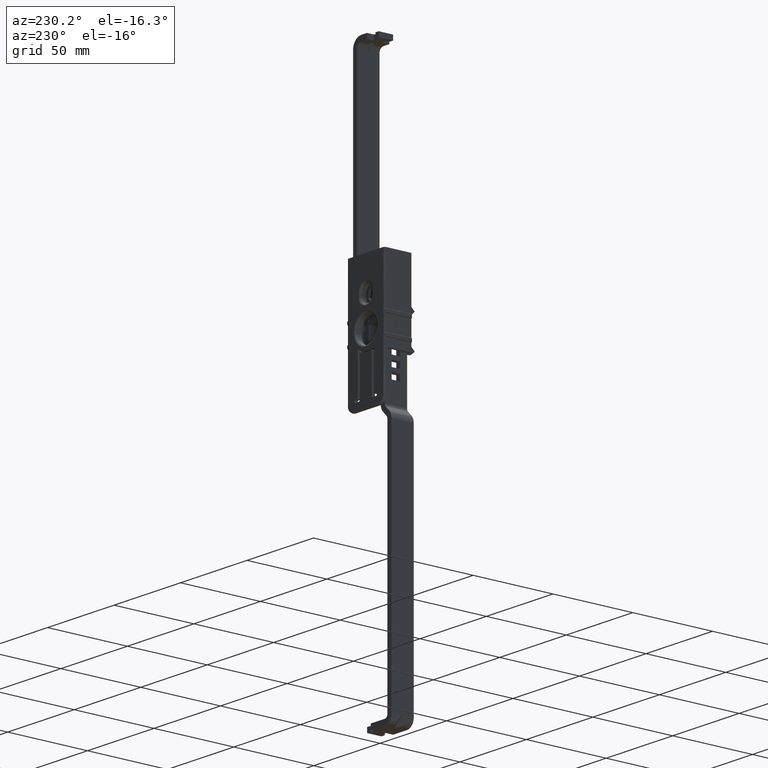
[diagram: clean part render]
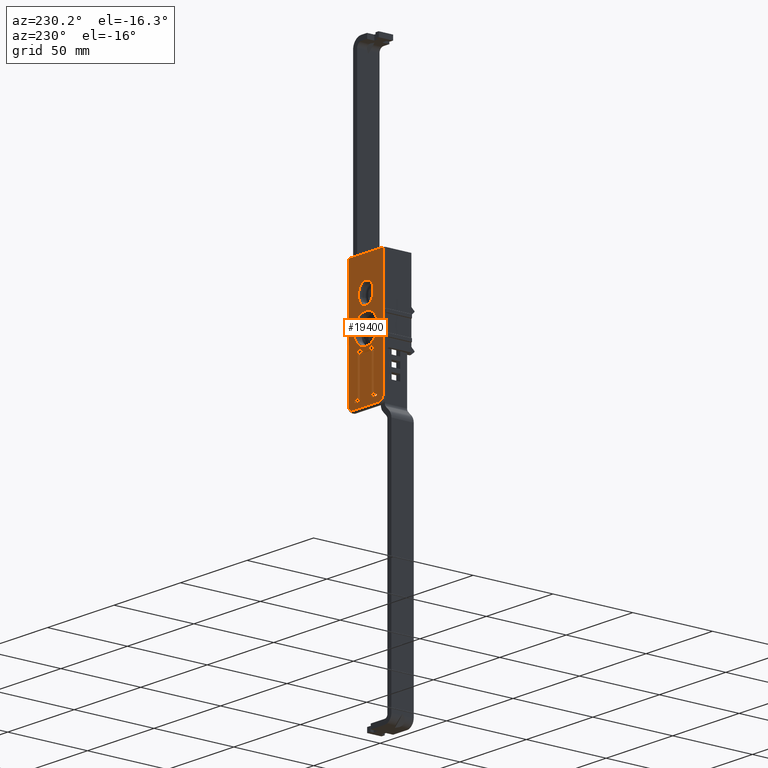
[diagram: same view with one face highlighted and labeled with its STEP entity id]
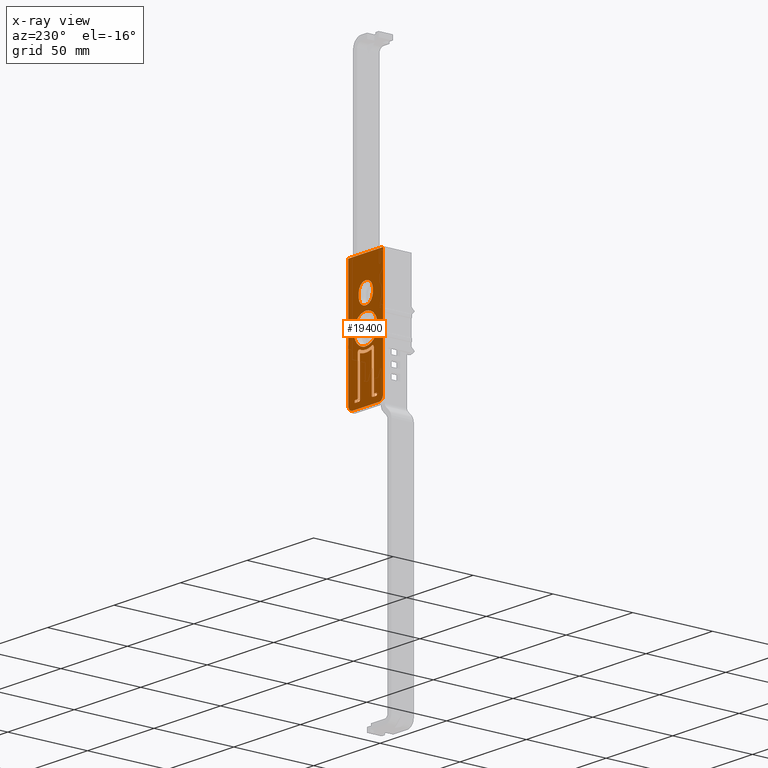
[diagram: x-ray of the same camera — body ghosted, the highlighted face saturated]
A machine part, auxiliary view. The second image highlights one B-rep face of the part: STEP entity #19400.
The next image is the same camera in x-ray: the body ghosted, the highlighted face saturated — about 0% of this face is hidden behind the body in this view.
In plain terms, the highlighted face is a freeform B-spline surface patch.
Its self-contained STEP definition (entity closure, byte-faithful):
#7867=CARTESIAN_POINT('',(8.899297249800293,9.000000427477161,-0.111837760280826));
#7868=VERTEX_POINT('',#7867);
#7882=CARTESIAN_POINT('',(0.0,9.000000427477152,-8.900000000000000));
#7883=VERTEX_POINT('',#7882);
#7884=CARTESIAN_POINT('',(8.899297249800293,9.000000427477161,-0.111837760280826));
#7885=CARTESIAN_POINT('',(8.788856148611307,9.000000427477156,-8.899999999726415));
#7886=CARTESIAN_POINT('',(0.0,9.000000427477152,-8.900000000000000));
#7894=(BOUNDED_CURVE()B_SPLINE_CURVE(2,(#7884,#7885,#7886),.UNSPECIFIED.,.F.,.U.)B_SPLINE_CURVE_WITH_KNOTS((3,3),(0.752215704194198,1.0),.UNSPECIFIED.)CURVE()GEOMETRIC_REPRESENTATION_ITEM()RATIONAL_B_SPLINE_CURVE((0.994854295377195,0.709702640120056,1.0))REPRESENTATION_ITEM(''));
#7895=EDGE_CURVE('',#7868,#7883,#7894,.T.);
#7897=CARTESIAN_POINT('',(-8.899297249800295,9.000000427477161,0.111837760280826));
#7898=VERTEX_POINT('',#7897);
#7899=CARTESIAN_POINT('',(0.0,9.000000427477152,-8.900000000000000));
#7900=CARTESIAN_POINT('',(-8.899999978501892,9.000000427477156,-8.900000000270170));
#7901=CARTESIAN_POINT('',(-8.899999956731916,9.000000427477161,-5.437533E-010));
#7902=CARTESIAN_POINT('',(-8.899999956595131,9.000000427477159,0.055921087515773));
#7903=CARTESIAN_POINT('',(-8.899297249800295,9.000000427477161,0.111837760280826));
#7911=(BOUNDED_CURVE()B_SPLINE_CURVE(2,(#7899,#7900,#7901,#7902,#7903),.UNSPECIFIED.,.F.,.U.)B_SPLINE_CURVE_WITH_KNOTS((3,2,3),(0.0,0.250000000000000,0.252215704194198),.UNSPECIFIED.)CURVE()GEOMETRIC_REPRESENTATION_ITEM()RATIONAL_B_SPLINE_CURVE((1.0,0.707106781186548,1.0,0.997404141066491,0.994854295377195))REPRESENTATION_ITEM(''));
#7912=EDGE_CURVE('',#7883,#7898,#7911,.T.);
#7955=CARTESIAN_POINT('',(0.0,9.000000427477179,8.900000000000000));
#7956=VERTEX_POINT('',#7955);
#7957=CARTESIAN_POINT('',(-8.899297249800295,9.000000427477161,0.111837760280826));
#7958=CARTESIAN_POINT('',(-8.788856148611311,9.000000427477172,8.899999999726417));
#7959=CARTESIAN_POINT('',(0.0,9.000000427477179,8.900000000000000));
#7967=(BOUNDED_CURVE()B_SPLINE_CURVE(2,(#7957,#7958,#7959),.UNSPECIFIED.,.F.,.U.)B_SPLINE_CURVE_WITH_KNOTS((3,3),(0.252215704194198,0.500000000000000),.UNSPECIFIED.)CURVE()GEOMETRIC_REPRESENTATION_ITEM()RATIONAL_B_SPLINE_CURVE((0.994854295377195,0.709702640120056,1.0))REPRESENTATION_ITEM(''));
#7968=EDGE_CURVE('',#7898,#7956,#7967,.T.);
#7970=CARTESIAN_POINT('',(0.0,9.000000427477179,8.900000000000000));
#7971=CARTESIAN_POINT('',(8.899999978501890,9.000000427477170,8.900000000270168));
#7972=CARTESIAN_POINT('',(8.899999956731914,9.000000427477161,5.437529E-010));
#7973=CARTESIAN_POINT('',(8.899999956595130,9.000000427477159,-0.055921087515773));
#7974=CARTESIAN_POINT('',(8.899297249800293,9.000000427477161,-0.111837760280826));
#7982=(BOUNDED_CURVE()B_SPLINE_CURVE(2,(#7970,#7971,#7972,#7973,#7974),.UNSPECIFIED.,.F.,.U.)B_SPLINE_CURVE_WITH_KNOTS((3,2,3),(0.500000000000000,0.750000000000000,0.752215704194198),.UNSPECIFIED.)CURVE()GEOMETRIC_REPRESENTATION_ITEM()RATIONAL_B_SPLINE_CURVE((1.0,0.707106781186548,1.0,0.997404141066491,0.994854295377195))REPRESENTATION_ITEM(''));
#7983=EDGE_CURVE('',#7956,#7868,#7982,.T.);
#8126=CARTESIAN_POINT('',(5.289275512781100,9.000000427477179,18.960003688880700));
#8127=VERTEX_POINT('',#8126);
#8157=CARTESIAN_POINT('',(5.289275512781100,9.000000427477179,17.039998021027401));
#8158=VERTEX_POINT('',#8157);
#8159=CARTESIAN_POINT('',(5.289275512781100,9.000000427477179,18.960003688880700));
#8160=CARTESIAN_POINT('',(5.289275512781100,9.000000427477179,17.039998021027401));
#8161=QUASI_UNIFORM_CURVE('',1,(#8159,#8160),.UNSPECIFIED.,.F.,.U.);
#8162=EDGE_CURVE('',#8127,#8158,#8161,.T.);
#8226=CARTESIAN_POINT('',(-5.289274016024190,9.000000427477179,17.040195466436700));
#8227=VERTEX_POINT('',#8226);
#8273=CARTESIAN_POINT('',(5.289275512781100,9.000000427477179,17.039998021027401));
#8274=CARTESIAN_POINT('',(5.295842224295991,9.000000427477179,16.300654058950851));
#8275=CARTESIAN_POINT('',(5.017701116741920,9.000000427477213,14.951425911646449));
#8276=CARTESIAN_POINT('',(3.970944924719992,9.000000427477113,13.368384744820711));
#8277=CARTESIAN_POINT('',(2.829903729874185,9.000000427477286,12.472518958754151));
#8278=CARTESIAN_POINT('',(1.600906940367979,9.000000427477001,11.906551195581971));
#8279=CARTESIAN_POINT('',(0.307670365402238,9.000000427477508,11.647859827935770));
#8280=CARTESIAN_POINT('',(-1.091498398410623,9.000000427476740,11.769175308379980));
#8281=CARTESIAN_POINT('',(-2.373281891802585,9.000000427477387,12.212509545622471));
#8282=CARTESIAN_POINT('',(-3.658701217304619,9.000000427477488,13.053405214971550));
#8283=CARTESIAN_POINT('',(-4.620780961020337,9.000000427476902,14.266047306150210));
#8284=CARTESIAN_POINT('',(-5.180674153244689,9.000000427477231,15.691514644731770));
#8285=CARTESIAN_POINT('',(-5.293061865930485,9.000000427477408,16.561917028224379));
#8286=CARTESIAN_POINT('',(-5.289274016024190,9.000000427477179,17.040195466436700));
#8287=B_SPLINE_CURVE_WITH_KNOTS('',3,(#8273,#8274,#8275,#8276,#8277,#8278,#8279,#8280,#8281,#8282,#8283,#8284,#8285,#8286),.UNSPECIFIED.,.F.,.U.,(4,1,1,1,1,1,1,1,1,1,1,4),(0.000001638717350,2.217647427210661,4.044016231080340,5.609298868505242,6.522478192252242,8.087997833760223,9.523065298616336,10.697204190989870,12.131974867951801,14.088803771588850,15.262958981909700,16.697839885468230),.UNSPECIFIED.);
#8288=EDGE_CURVE('',#8158,#8227,#8287,.T.);
#8316=CARTESIAN_POINT('',(-5.289274016024190,9.000000427477179,18.959806243471348));
#8317=VERTEX_POINT('',#8316);
#8347=CARTESIAN_POINT('',(-5.289274016024190,9.000000427477179,18.959806243471348));
#8348=CARTESIAN_POINT('',(-5.292995496096881,9.000000427477179,19.438075087753329));
#8349=CARTESIAN_POINT('',(-5.153018893826491,9.000000427477168,20.526353432826369));
#8350=CARTESIAN_POINT('',(-4.537618067330736,9.000000427477199,21.846276385235289));
#8351=CARTESIAN_POINT('',(-3.685100453129818,9.000000427477151,22.842242969685628));
#8352=CARTESIAN_POINT('',(-2.757484134551335,9.000000427477220,23.571130284900921));
#8353=CARTESIAN_POINT('',(-1.442198208590511,9.000000427477151,24.177221073295112));
#8354=CARTESIAN_POINT('',(0.090672707578646,9.000000427477229,24.367293025023930));
#8355=CARTESIAN_POINT('',(1.515166228610916,9.000000427477181,24.118515402979121));
#8356=CARTESIAN_POINT('',(2.599939425382499,9.000000427477172,23.650971170088571));
#8357=CARTESIAN_POINT('',(3.526827200929331,9.000000427477190,22.994120556376949));
#8358=CARTESIAN_POINT('',(4.267972706617378,9.000000427477179,22.189822818546499));
#8359=CARTESIAN_POINT('',(5.048262186566869,9.000000427477177,20.874300245530652));
#8360=CARTESIAN_POINT('',(5.296285822240345,9.000000427477183,19.742891286608451));
#8361=CARTESIAN_POINT('',(5.289275512781100,9.000000427477179,18.960003688880700));
#8362=B_SPLINE_CURVE_WITH_KNOTS('',3,(#8347,#8348,#8349,#8350,#8351,#8352,#8353,#8354,#8355,#8356,#8357,#8358,#8359,#8360,#8361),.UNSPECIFIED.,.F.,.U.,(4,1,1,1,1,1,1,1,1,1,1,1,4),(0.000001638724623,1.434941391471540,3.261334190723371,4.305017947438271,5.348667309405565,6.783444937736221,8.609843680213412,9.914396576258570,11.088542645487900,12.131974867953399,13.306047797923290,14.349738051738040,16.697839885468149),.UNSPECIFIED.);
#8363=EDGE_CURVE('',#8317,#8127,#8362,.T.);
#8401=CARTESIAN_POINT('',(-5.289274016024190,9.000000427477179,17.040195466436700));
#8402=CARTESIAN_POINT('',(-5.289274016024190,9.000000427477179,18.959806243471348));
#8403=QUASI_UNIFORM_CURVE('',1,(#8401,#8402),.UNSPECIFIED.,.F.,.U.);
#8404=EDGE_CURVE('',#8227,#8317,#8403,.T.);
#16392=CARTESIAN_POINT('',(5.250000249361620,9.000000427477060,-35.500001686159500));
#16393=VERTEX_POINT('',#16392);
#16399=CARTESIAN_POINT('',(4.500000213738530,9.000000427477170,-34.750001650536497));
#16400=VERTEX_POINT('',#16399);
#16401=CARTESIAN_POINT('',(5.250000249361620,9.000000427477060,-35.500001686159592));
#16402=CARTESIAN_POINT('',(4.500000213738531,9.000000427477060,-35.500001686159592));
#16403=CARTESIAN_POINT('',(4.500000213738531,9.000000427477060,-34.750001650536497));
#16411=(BOUNDED_CURVE()B_SPLINE_CURVE(2,(#16401,#16402,#16403),.UNSPECIFIED.,.F.,.U.)CURVE()GEOMETRIC_REPRESENTATION_ITEM()QUASI_UNIFORM_CURVE()RATIONAL_B_SPLINE_CURVE((1.0,0.707106781186548,1.0))REPRESENTATION_ITEM(''));
#16412=EDGE_CURVE('',#16393,#16400,#16411,.T.);
#16434=CARTESIAN_POINT('',(7.750000368105240,9.000000427477060,-35.500001686159600));
#16435=VERTEX_POINT('',#16434);
#16441=CARTESIAN_POINT('',(7.750000368105240,9.000000427477060,-35.500001686159600));
#16442=CARTESIAN_POINT('',(5.250000249361620,9.000000427477060,-35.500001686159500));
#16443=QUASI_UNIFORM_CURVE('',1,(#16441,#16442),.UNSPECIFIED.,.F.,.U.);
#16444=EDGE_CURVE('',#16435,#16393,#16443,.T.);
#16483=CARTESIAN_POINT('',(7.750000368105240,9.000000427477060,-34.000001614913401));
#16484=VERTEX_POINT('',#16483);
#16490=CARTESIAN_POINT('',(7.750000368105240,9.000000427477060,-34.000001614913401));
#16491=CARTESIAN_POINT('',(7.922016314447838,9.000000427477053,-33.999038790105963));
#16492=CARTESIAN_POINT('',(8.227638122453497,9.000000427477092,-34.110172796651227));
#16493=CARTESIAN_POINT('',(8.469254105309748,9.000000427477012,-34.453489819916491));
#16494=CARTESIAN_POINT('',(8.516702017957762,9.000000427477140,-34.775373531171077));
#16495=CARTESIAN_POINT('',(8.456731480601974,9.000000427476993,-35.042640479318123));
#16496=CARTESIAN_POINT('',(8.303492498888382,9.000000427477067,-35.284815640054539));
#16497=CARTESIAN_POINT('',(8.056787609957398,9.000000427477112,-35.458546269050409));
#16498=CARTESIAN_POINT('',(7.848159563706859,9.000000427477023,-35.500071308349128));
#16499=CARTESIAN_POINT('',(7.750000368105240,9.000000427477060,-35.500001686159600));
#16500=B_SPLINE_CURVE_WITH_KNOTS('',3,(#16490,#16491,#16492,#16493,#16494,#16495,#16496,#16497,#16498,#16499),.UNSPECIFIED.,.F.,.U.,(4,1,1,1,1,1,1,4),(0.000005210018345,0.515472367024620,0.920630475908721,1.214844803583242,1.472732354879991,1.730498029057112,2.061916734349529,2.356430949661646),.UNSPECIFIED.);
#16501=EDGE_CURVE('',#16484,#16435,#16500,.T.);
#16519=CARTESIAN_POINT('',(6.500000308733370,9.000000427477060,-34.000001614913351));
#16520=VERTEX_POINT('',#16519);
#16526=CARTESIAN_POINT('',(6.500000308733370,9.000000427477060,-34.000001614913351));
#16527=CARTESIAN_POINT('',(7.750000368105240,9.000000427477060,-34.000001614913401));
#16528=QUASI_UNIFORM_CURVE('',1,(#16526,#16527),.UNSPECIFIED.,.F.,.U.);
#16529=EDGE_CURVE('',#16520,#16484,#16528,.T.);
#16564=CARTESIAN_POINT('',(6.000000284984700,9.000000427477060,-33.500001591164597));
#16565=VERTEX_POINT('',#16564);
#16571=CARTESIAN_POINT('',(6.500000308733370,9.000000427477060,-34.000001614913323));
#16572=CARTESIAN_POINT('',(6.000000284984709,9.000000427477060,-34.000001614913266));
#16573=CARTESIAN_POINT('',(6.000000284984709,9.000000427477060,-33.500001591164597));
#16581=(BOUNDED_CURVE()B_SPLINE_CURVE(2,(#16571,#16572,#16573),.UNSPECIFIED.,.F.,.U.)CURVE()GEOMETRIC_REPRESENTATION_ITEM()QUASI_UNIFORM_CURVE()RATIONAL_B_SPLINE_CURVE((1.0,0.707106781186590,1.0))REPRESENTATION_ITEM(''));
#16582=EDGE_CURVE('',#16520,#16565,#16581,.T.);
#16600=CARTESIAN_POINT('',(6.000000284984640,9.000000427477060,-10.467091783660241));
#16601=VERTEX_POINT('',#16600);
#16607=CARTESIAN_POINT('',(6.000000284984640,9.000000427477060,-10.467091783660241));
#16608=CARTESIAN_POINT('',(6.000000284984700,9.000000427477060,-33.500001591164597));
#16609=QUASI_UNIFORM_CURVE('',1,(#16607,#16608),.UNSPECIFIED.,.F.,.U.);
#16610=EDGE_CURVE('',#16601,#16565,#16609,.T.);
#16642=CARTESIAN_POINT('',(4.568965734255530,9.000000427477060,-9.564756285072079));
#16643=VERTEX_POINT('',#16642);
#16649=CARTESIAN_POINT('',(4.568965734255530,9.000000427477060,-9.564756285072079));
#16650=CARTESIAN_POINT('',(4.758379375183111,9.000000427477067,-9.473352697693594));
#16651=CARTESIAN_POINT('',(5.086301765870926,9.000000427477062,-9.431676168782225));
#16652=CARTESIAN_POINT('',(5.547377747487700,9.000000427477064,-9.595921214829094));
#16653=CARTESIAN_POINT('',(5.895649479159404,9.000000427477064,-9.921496823167578));
#16654=CARTESIAN_POINT('',(6.000608225865745,9.000000427477064,-10.277916936711909));
#16655=CARTESIAN_POINT('',(6.000000284984640,9.000000427477060,-10.467091783660241));
#16656=B_SPLINE_CURVE_WITH_KNOTS('',3,(#16649,#16650,#16651,#16652,#16653,#16654,#16655),.UNSPECIFIED.,.F.,.U.,(4,1,1,1,4),(0.000001669123767,0.630286701944944,0.945396178924051,1.449544952708700,2.016768427385419),.UNSPECIFIED.);
#16657=EDGE_CURVE('',#16643,#16601,#16656,.T.);
#16692=CARTESIAN_POINT('',(-4.568965734254590,9.000000427477060,-9.564756285069009));
#16693=VERTEX_POINT('',#16692);
#16699=CARTESIAN_POINT('',(4.568965734255530,9.000000427477060,-9.564756285072077));
#16700=CARTESIAN_POINT('',(-2.619432E-013,9.000000427477060,-11.747294685280261));
#16701=CARTESIAN_POINT('',(-4.568965734255957,9.000000427477060,-9.564756285071875));
#16709=(BOUNDED_CURVE()B_SPLINE_CURVE(2,(#16699,#16700,#16701),.UNSPECIFIED.,.F.,.U.)CURVE()GEOMETRIC_REPRESENTATION_ITEM()QUASI_UNIFORM_CURVE()RATIONAL_B_SPLINE_CURVE((1.0,0.902335455733064,1.0))REPRESENTATION_ITEM(''));
#16710=EDGE_CURVE('',#16643,#16693,#16709,.T.);
#16743=CARTESIAN_POINT('',(-6.000000284984650,9.000000427477060,-10.467091783660241));
#16744=VERTEX_POINT('',#16743);
#16750=CARTESIAN_POINT('',(-6.000000284984650,9.000000427477060,-10.467091783660241));
#16751=CARTESIAN_POINT('',(-6.000854857528127,9.000000427477062,-10.256770468466540));
#16752=CARTESIAN_POINT('',(-5.897070544832453,9.000000427477065,-9.942905377615888));
#16753=CARTESIAN_POINT('',(-5.580231507648961,9.000000427477053,-9.627920221723153));
#16754=CARTESIAN_POINT('',(-5.289679482080802,9.000000427477090,-9.492314161626320));
#16755=CARTESIAN_POINT('',(-4.932357171926744,9.000000427476993,-9.448692969709150));
#16756=CARTESIAN_POINT('',(-4.701577362800465,9.000000427477115,-9.501177932582751));
#16757=CARTESIAN_POINT('',(-4.568965734254590,9.000000427477060,-9.564756285069009));
#16758=B_SPLINE_CURVE_WITH_KNOTS('',3,(#16750,#16751,#16752,#16753,#16754,#16755,#16756,#16757),.UNSPECIFIED.,.F.,.U.,(4,1,1,1,1,4),(0.000001669124081,0.630286701945362,0.945396178924532,1.323443453017023,1.575609053781988,2.016768427386025),.UNSPECIFIED.);
#16759=EDGE_CURVE('',#16744,#16693,#16758,.T.);
#16777=CARTESIAN_POINT('',(-6.000000284984760,9.000000427477060,-33.500001591164647));
#16778=VERTEX_POINT('',#16777);
#16784=CARTESIAN_POINT('',(-6.000000284984760,9.000000427477060,-33.500001591164647));
#16785=CARTESIAN_POINT('',(-6.000000284984650,9.000000427477060,-10.467091783660241));
#16786=QUASI_UNIFORM_CURVE('',1,(#16784,#16785),.UNSPECIFIED.,.F.,.U.);
#16787=EDGE_CURVE('',#16778,#16744,#16786,.T.);
#16822=CARTESIAN_POINT('',(-6.500000308733500,9.000000427477060,-34.000001614913401));
#16823=VERTEX_POINT('',#16822);
#16829=CARTESIAN_POINT('',(-6.000000284984760,9.000000427477060,-33.500001591164647));
#16830=CARTESIAN_POINT('',(-6.000000284984815,9.000000427477060,-34.000001614913330));
#16831=CARTESIAN_POINT('',(-6.500000308733500,9.000000427477060,-34.000001614913337));
#16839=(BOUNDED_CURVE()B_SPLINE_CURVE(2,(#16829,#16830,#16831),.UNSPECIFIED.,.F.,.U.)CURVE()GEOMETRIC_REPRESENTATION_ITEM()QUASI_UNIFORM_CURVE()RATIONAL_B_SPLINE_CURVE((1.0,0.707106781186587,1.0))REPRESENTATION_ITEM(''));
#16840=EDGE_CURVE('',#16778,#16823,#16839,.T.);
#16858=CARTESIAN_POINT('',(-7.750000368105250,9.000000427477060,-34.000001614913401));
#16859=VERTEX_POINT('',#16858);
#16865=CARTESIAN_POINT('',(-7.750000368105250,9.000000427477060,-34.000001614913401));
#16866=CARTESIAN_POINT('',(-6.500000308733500,9.000000427477060,-34.000001614913401));
#16867=QUASI_UNIFORM_CURVE('',1,(#16865,#16866),.UNSPECIFIED.,.F.,.U.);
#16868=EDGE_CURVE('',#16859,#16823,#16867,.T.);
#16907=CARTESIAN_POINT('',(-7.750000368105250,9.000000427477060,-35.500001686159500));
#16908=VERTEX_POINT('',#16907);
#16914=CARTESIAN_POINT('',(-7.750000368105250,9.000000427477060,-35.500001686159500));
#16915=CARTESIAN_POINT('',(-7.835868854343743,9.000000427477064,-35.500030532484139));
#16916=CARTESIAN_POINT('',(-8.032285726939007,9.000000427477064,-35.466023082563638));
#16917=CARTESIAN_POINT('',(-8.265955152901007,9.000000427477040,-35.318051071603158));
#16918=CARTESIAN_POINT('',(-8.428499012983018,9.000000427477103,-35.098694144594283));
#16919=CARTESIAN_POINT('',(-8.510528339988380,9.000000427476989,-34.850437786143637));
#16920=CARTESIAN_POINT('',(-8.494314271925706,9.000000427477108,-34.512912499910883));
#16921=CARTESIAN_POINT('',(-8.264168445400603,9.000000427476952,-34.128205609246329));
#16922=CARTESIAN_POINT('',(-7.934299682606909,9.000000427477159,-33.998788224041107));
#16923=CARTESIAN_POINT('',(-7.750000368105250,9.000000427477060,-34.000001614913401));
#16924=B_SPLINE_CURVE_WITH_KNOTS('',3,(#16914,#16915,#16916,#16917,#16918,#16919,#16920,#16921,#16922,#16923),.UNSPECIFIED.,.F.,.U.,(4,1,1,1,1,1,1,4),(0.000005210031079,0.257675033080544,0.589123873622595,0.810107606893054,1.067785929255103,1.362222555622689,1.804151059801060,2.356430949661402),.UNSPECIFIED.);
#16925=EDGE_CURVE('',#16908,#16859,#16924,.T.);
#16943=CARTESIAN_POINT('',(-5.250000249361570,9.000000427477060,-35.500001686159550));
#16944=VERTEX_POINT('',#16943);
#16950=CARTESIAN_POINT('',(-5.250000249361570,9.000000427477060,-35.500001686159550));
#16951=CARTESIAN_POINT('',(-7.750000368105250,9.000000427477060,-35.500001686159500));
#16952=QUASI_UNIFORM_CURVE('',1,(#16950,#16951),.UNSPECIFIED.,.F.,.U.);
#16953=EDGE_CURVE('',#16944,#16908,#16952,.T.);
#16988=CARTESIAN_POINT('',(-4.500000213738590,9.000000427477060,-34.750001650536497));
#16989=VERTEX_POINT('',#16988);
#16995=CARTESIAN_POINT('',(-4.500000213738502,9.000000427477060,-34.750001650536497));
#16996=CARTESIAN_POINT('',(-4.500000213738503,9.000000427477060,-35.500001686159571));
#16997=CARTESIAN_POINT('',(-5.250000249361570,9.000000427477060,-35.500001686159557));
#17005=(BOUNDED_CURVE()B_SPLINE_CURVE(2,(#16995,#16996,#16997),.UNSPECIFIED.,.F.,.U.)CURVE()GEOMETRIC_REPRESENTATION_ITEM()QUASI_UNIFORM_CURVE()RATIONAL_B_SPLINE_CURVE((1.0,0.707106781186547,1.0))REPRESENTATION_ITEM(''));
#17006=EDGE_CURVE('',#16989,#16944,#17005,.T.);
#17049=CARTESIAN_POINT('',(13.000000664964400,9.000000427477179,-36.000001899898052));
#17050=VERTEX_POINT('',#17049);
#17064=CARTESIAN_POINT('',(13.000000664964400,9.000000427477179,38.000001804903100));
#17065=VERTEX_POINT('',#17064);
#17066=CARTESIAN_POINT('',(13.000000664964400,9.000000427477179,-36.000001899898052));
#17067=CARTESIAN_POINT('',(13.000000664964400,9.000000427477179,38.000001804903100));
#17068=QUASI_UNIFORM_CURVE('',1,(#17066,#17067),.UNSPECIFIED.,.F.,.U.);
#17069=EDGE_CURVE('',#17050,#17065,#17068,.T.);
#17113=CARTESIAN_POINT('',(10.000000664964400,9.000000427477179,-39.000001899898102));
#17114=VERTEX_POINT('',#17113);
#17130=CARTESIAN_POINT('',(10.000000664964400,9.000000427477179,-39.000001899898102));
#17131=CARTESIAN_POINT('',(10.343601932725640,9.000000427477181,-39.000156929578537));
#17132=CARTESIAN_POINT('',(11.079948140382299,9.000000427477181,-38.872334309316081));
#17133=CARTESIAN_POINT('',(11.916846605467731,9.000000427477181,-38.370803967651547));
#17134=CARTESIAN_POINT('',(12.472734428720891,9.000000427477200,-37.741466351066158));
#17135=CARTESIAN_POINT('',(12.877790990190350,9.000000427477124,-37.006028899795417));
#17136=CARTESIAN_POINT('',(13.000353523018360,9.000000427477206,-36.392762509881351));
#17137=CARTESIAN_POINT('',(13.000000664964400,9.000000427477179,-36.000001899898052));
#17138=B_SPLINE_CURVE_WITH_KNOTS('',3,(#17130,#17131,#17132,#17133,#17134,#17135,#17136,#17137),.UNSPECIFIED.,.F.,.U.,(4,1,1,1,1,4),(0.000000839972986,1.030852590306004,2.209047713793426,2.871677637186752,3.534380634868116,4.712507233165916),.UNSPECIFIED.);
#17139=EDGE_CURVE('',#17114,#17050,#17138,.T.);
#17170=CARTESIAN_POINT('',(-10.000000664964301,9.000000427477179,-39.000001899898102));
#17171=VERTEX_POINT('',#17170);
#17187=CARTESIAN_POINT('',(-10.000000664964301,9.000000427477179,-39.000001899898102));
#17188=CARTESIAN_POINT('',(10.000000664964400,9.000000427477179,-39.000001899898102));
#17189=QUASI_UNIFORM_CURVE('',1,(#17187,#17188),.UNSPECIFIED.,.F.,.U.);
#17190=EDGE_CURVE('',#17171,#17114,#17189,.T.);
#17218=CARTESIAN_POINT('',(-13.000000664964301,9.000000427477179,-36.000001899898052));
#17219=VERTEX_POINT('',#17218);
#17235=CARTESIAN_POINT('',(-13.000000664964301,9.000000427477179,-36.000001899898052));
#17236=CARTESIAN_POINT('',(-13.000638361282400,9.000000427477177,-36.441925875315192));
#17237=CARTESIAN_POINT('',(-12.845360131830470,9.000000427477193,-37.128539680610032));
#17238=CARTESIAN_POINT('',(-12.329178944402930,9.000000427477177,-37.943318342743090));
#17239=CARTESIAN_POINT('',(-11.784801483123340,9.000000427477184,-38.449011181050643));
#17240=CARTESIAN_POINT('',(-11.005999730456280,9.000000427477184,-38.877701380101527));
#17241=CARTESIAN_POINT('',(-10.392781771213549,9.000000427477144,-39.000430277841019));
#17242=CARTESIAN_POINT('',(-10.000000664964301,9.000000427477179,-39.000001899898102));
#17243=B_SPLINE_CURVE_WITH_KNOTS('',3,(#17235,#17236,#17237,#17238,#17239,#17240,#17241,#17242),.UNSPECIFIED.,.F.,.U.,(4,1,1,1,1,4),(0.000000839988075,1.325402286246472,2.061806808575359,2.871677637191088,3.534380634870663,4.712507233165844),.UNSPECIFIED.);
#17244=EDGE_CURVE('',#17219,#17171,#17243,.T.);
#17297=CARTESIAN_POINT('',(-13.000000664964301,9.000000427477179,38.000001804903100));
#17298=VERTEX_POINT('',#17297);
#17312=CARTESIAN_POINT('',(-13.000000664964301,9.000000427477179,38.000001804903100));
#17313=CARTESIAN_POINT('',(-13.000000664964301,9.000000427477179,-36.000001899898052));
#17314=QUASI_UNIFORM_CURVE('',1,(#17312,#17313),.UNSPECIFIED.,.F.,.U.);
#17315=EDGE_CURVE('',#17298,#17219,#17314,.T.);
#17543=CARTESIAN_POINT('',(13.000000664964400,9.000000427477179,38.000001804903100));
#17544=CARTESIAN_POINT('',(-13.000000664964301,9.000000427477179,38.000001804903100));
#17545=QUASI_UNIFORM_CURVE('',1,(#17543,#17544),.UNSPECIFIED.,.F.,.U.);
#17546=EDGE_CURVE('',#17065,#17298,#17545,.T.);
#18627=CARTESIAN_POINT('',(-4.500000213738470,9.000000427477060,-11.948222192510119));
#18628=VERTEX_POINT('',#18627);
#18634=CARTESIAN_POINT('',(-4.500000213738470,9.000000427477060,-11.948222192510119));
#18635=CARTESIAN_POINT('',(-4.500000213738590,9.000000427477060,-34.750001650536497));
#18636=QUASI_UNIFORM_CURVE('',1,(#18634,#18635),.UNSPECIFIED.,.F.,.U.);
#18637=EDGE_CURVE('',#18628,#16989,#18636,.T.);
#18663=CARTESIAN_POINT('',(-3.841270029216435,9.000000427477060,-11.474086389380240));
#18664=VERTEX_POINT('',#18663);
#18670=CARTESIAN_POINT('',(-4.500000213738470,9.000000427477060,-11.948222192510119));
#18671=CARTESIAN_POINT('',(-4.500999254942474,9.000000427477048,-11.819570446671060));
#18672=CARTESIAN_POINT('',(-4.432167285562572,9.000000427477053,-11.653444713215331));
#18673=CARTESIAN_POINT('',(-4.246972907317638,9.000000427477064,-11.503040776800621));
#18674=CARTESIAN_POINT('',(-4.067681875482703,9.000000427477055,-11.436017984403421));
#18675=CARTESIAN_POINT('',(-3.916082804569866,9.000000427477067,-11.448882779417101));
#18676=CARTESIAN_POINT('',(-3.841270029216435,9.000000427477060,-11.474086389380240));
#18677=B_SPLINE_CURVE_WITH_KNOTS('',3,(#18670,#18671,#18672,#18673,#18674,#18675,#18676),.UNSPECIFIED.,.F.,.U.,(4,1,1,1,4),(0.000001700323745,0.384768886666135,0.503047963143762,0.710296353459855,0.947061237838587),.UNSPECIFIED.);
#18678=EDGE_CURVE('',#18628,#18664,#18677,.T.);
#18700=CARTESIAN_POINT('',(3.841270029211250,9.000000427477060,-11.474086389382000));
#18701=VERTEX_POINT('',#18700);
#18707=CARTESIAN_POINT('',(3.841270029211247,9.000000427477060,-11.474086389381990));
#18708=CARTESIAN_POINT('',(-2.886580E-012,9.000000427477060,-12.760058530134081));
#18709=CARTESIAN_POINT('',(-3.841270029216437,9.000000427477060,-11.474086389380250));
#18717=(BOUNDED_CURVE()B_SPLINE_CURVE(2,(#18707,#18708,#18709),.UNSPECIFIED.,.F.,.U.)CURVE()GEOMETRIC_REPRESENTATION_ITEM()QUASI_UNIFORM_CURVE()RATIONAL_B_SPLINE_CURVE((1.0,0.948271557387340,1.0))REPRESENTATION_ITEM(''));
#18718=EDGE_CURVE('',#18701,#18664,#18717,.T.);
#18738=CARTESIAN_POINT('',(4.500000213738530,9.000000427477060,-11.948222192510100));
#18739=VERTEX_POINT('',#18738);
#18745=CARTESIAN_POINT('',(3.841270029211250,9.000000427477060,-11.474086389382000));
#18746=CARTESIAN_POINT('',(3.962895159222334,9.000000427477064,-11.432375525073590));
#18747=CARTESIAN_POINT('',(4.184698654404301,9.000000427477060,-11.447784307163900));
#18748=CARTESIAN_POINT('',(4.436525667917660,9.000000427477055,-11.652888467523910));
#18749=CARTESIAN_POINT('',(4.500514155510190,9.000000427477072,-11.839585990909169));
#18750=CARTESIAN_POINT('',(4.500000213738530,9.000000427477060,-11.948222192510100));
#18751=B_SPLINE_CURVE_WITH_KNOTS('',3,(#18745,#18746,#18747,#18748,#18749,#18750),.UNSPECIFIED.,.F.,.U.,(4,1,1,4),(0.000001700323127,0.384768886668055,0.621467079588496,0.947061237844128),.UNSPECIFIED.);
#18752=EDGE_CURVE('',#18701,#18739,#18751,.T.);
#18772=CARTESIAN_POINT('',(4.500000213738530,9.000000427477170,-34.750001650536497));
#18773=CARTESIAN_POINT('',(4.500000213738530,9.000000427477060,-11.948222192510100));
#18774=QUASI_UNIFORM_CURVE('',1,(#18772,#18773),.UNSPECIFIED.,.F.,.U.);
#18775=EDGE_CURVE('',#16400,#18739,#18774,.T.);
#19353=CARTESIAN_POINT('',(-14.298700681001190,9.000000427477179,41.846151840716978));
#19354=CARTESIAN_POINT('',(-14.298700681001190,9.000000427477179,-42.846154001013019));
#19355=CARTESIAN_POINT('',(14.298701378375670,9.000000427477179,41.846151840716978));
#19356=CARTESIAN_POINT('',(14.298701378375670,9.000000427477179,-42.846154001013019));
#19357=B_SPLINE_SURFACE_WITH_KNOTS('',1,1,((#19353,#19355),(#19354,#19356)),.UNSPECIFIED.,.F.,.F.,.U.,(2,2),(2,2),(0.0,84.692305841729990),(0.0,28.597402059376861),.UNSPECIFIED.);
#19358=ORIENTED_EDGE('',*,*,#17139,.F.);
#19359=ORIENTED_EDGE('',*,*,#17190,.F.);
#19360=ORIENTED_EDGE('',*,*,#17244,.F.);
#19361=ORIENTED_EDGE('',*,*,#17315,.F.);
#19362=ORIENTED_EDGE('',*,*,#17546,.F.);
#19363=ORIENTED_EDGE('',*,*,#17069,.F.);
#19364=EDGE_LOOP('',(#19358,#19359,#19360,#19361,#19362,#19363));
#19365=FACE_OUTER_BOUND('',#19364,.T.);
#19366=ORIENTED_EDGE('',*,*,#16412,.F.);
#19367=ORIENTED_EDGE('',*,*,#16444,.F.);
#19368=ORIENTED_EDGE('',*,*,#16501,.F.);
#19369=ORIENTED_EDGE('',*,*,#16529,.F.);
#19370=ORIENTED_EDGE('',*,*,#16582,.T.);
#19371=ORIENTED_EDGE('',*,*,#16610,.F.);
#19372=ORIENTED_EDGE('',*,*,#16657,.F.);
#19373=ORIENTED_EDGE('',*,*,#16710,.T.);
#19374=ORIENTED_EDGE('',*,*,#16759,.F.);
#19375=ORIENTED_EDGE('',*,*,#16787,.F.);
#19376=ORIENTED_EDGE('',*,*,#16840,.T.);
#19377=ORIENTED_EDGE('',*,*,#16868,.F.);
#19378=ORIENTED_EDGE('',*,*,#16925,.F.);
#19379=ORIENTED_EDGE('',*,*,#16953,.F.);
#19380=ORIENTED_EDGE('',*,*,#17006,.F.);
#19381=ORIENTED_EDGE('',*,*,#18637,.F.);
#19382=ORIENTED_EDGE('',*,*,#18678,.T.);
#19383=ORIENTED_EDGE('',*,*,#18718,.F.);
#19384=ORIENTED_EDGE('',*,*,#18752,.T.);
#19385=ORIENTED_EDGE('',*,*,#18775,.F.);
#19386=EDGE_LOOP('',(#19366,#19367,#19368,#19369,#19370,#19371,#19372,#19373,#19374,#19375,#19376,#19377,#19378,#19379,#19380,#19381,#19382,#19383,#19384,#19385));
#19387=FACE_BOUND('',#19386,.T.);
#19388=ORIENTED_EDGE('',*,*,#8363,.F.);
#19389=ORIENTED_EDGE('',*,*,#8404,.F.);
#19390=ORIENTED_EDGE('',*,*,#8288,.F.);
#19391=ORIENTED_EDGE('',*,*,#8162,.F.);
#19392=EDGE_LOOP('',(#19388,#19389,#19390,#19391));
#19393=FACE_BOUND('',#19392,.T.);
#19394=ORIENTED_EDGE('',*,*,#7983,.F.);
#19395=ORIENTED_EDGE('',*,*,#7968,.F.);
#19396=ORIENTED_EDGE('',*,*,#7912,.F.);
#19397=ORIENTED_EDGE('',*,*,#7895,.F.);
#19398=EDGE_LOOP('',(#19394,#19395,#19396,#19397));
#19399=FACE_BOUND('',#19398,.T.);
#19400=ADVANCED_FACE('',(#19365,#19387,#19393,#19399),#19357,.F.);